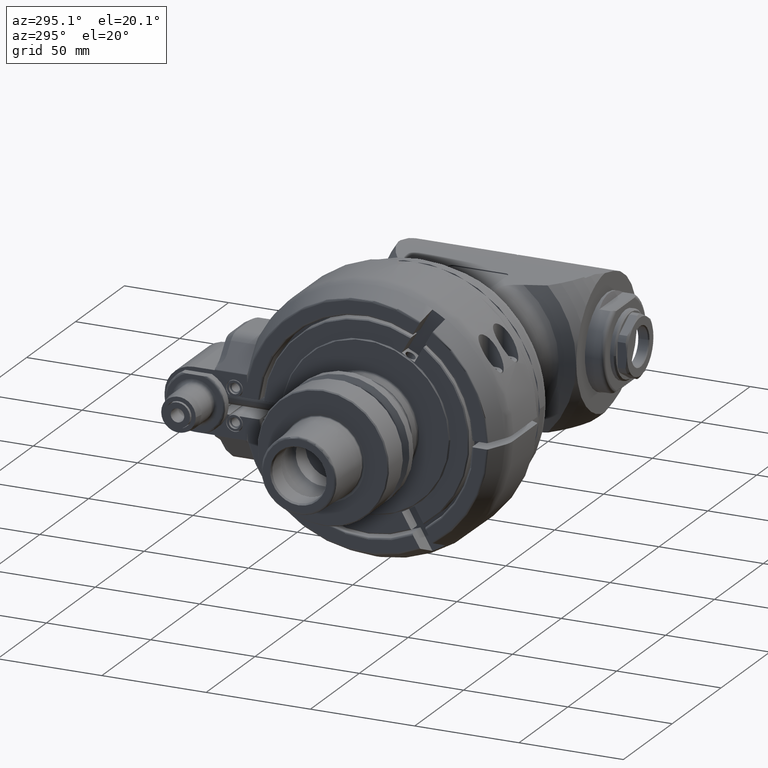
[diagram: clean part render]
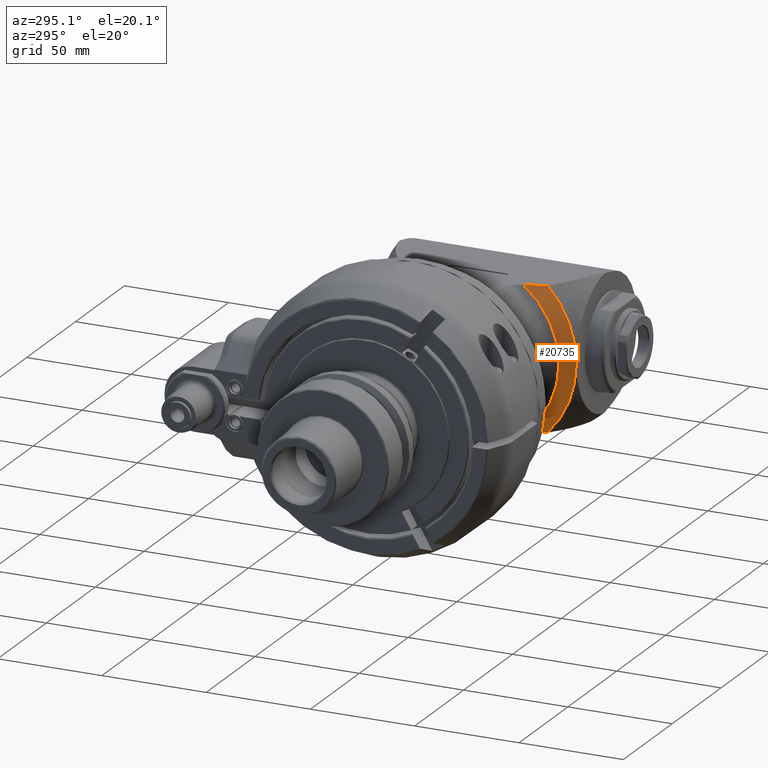
[diagram: same view with one face highlighted and labeled with its STEP entity id]
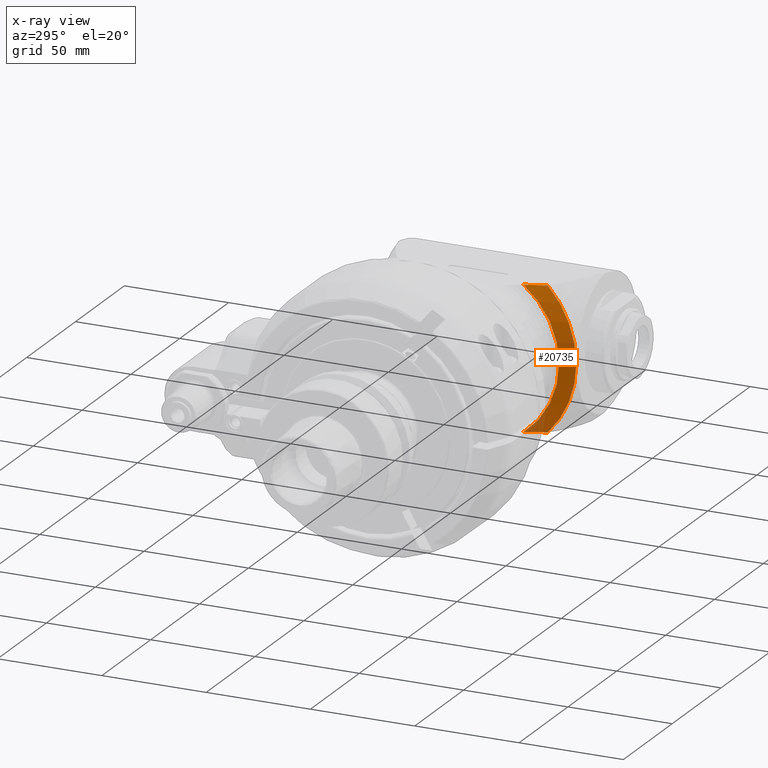
[diagram: x-ray of the same camera — body ghosted, the highlighted face saturated]
A machine part, auxiliary view. The second image highlights one B-rep face of the part: STEP entity #20735.
The next image is the same camera in x-ray: the body ghosted, the highlighted face saturated — about 7% of this face is hidden behind the body in this view.
In plain terms, the highlighted conical surface has half-angle 60 deg.
Its self-contained STEP definition (entity closure, byte-faithful):
#333=B_SPLINE_CURVE_WITH_KNOTS('',3,(#32795,#32796,#32797,#32798,#32799,
#32800,#32801,#32802,#32803,#32804,#32805,#32806,#32807,#32808,#32809,#32810,
#32811,#32812,#32813,#32814,#32815,#32816,#32817,#32818,#32819),
 .UNSPECIFIED.,.F.,.F.,(4,3,3,3,3,3,3,3,4),(0.,1.30948238302685,2.61889746180763,
3.92826086046721,5.2375941532122,6.54736678023238,7.85804900088386,9.16938552513648,
10.4811395348886),.UNSPECIFIED.);
#334=B_SPLINE_CURVE_WITH_KNOTS('',3,(#32822,#32823,#32824,#32825,#32826,
#32827,#32828,#32829,#32830,#32831,#32832,#32833,#32834,#32835,#32836,#32837,
#32838,#32839,#32840,#32841,#32842,#32843,#32844,#32845,#32846),
 .UNSPECIFIED.,.F.,.F.,(4,3,3,3,3,3,3,3,4),(0.,1.30983362429086,2.61971322563973,
3.929680558623,5.23975538129397,6.54994635411092,7.86025117107962,9.17065675627147,
10.4811395331087),.UNSPECIFIED.);
#493=CONICAL_SURFACE('',#21967,55.2420471066061,1.0471975511966);
#634=CIRCLE('',#21953,49.);
#644=CIRCLE('',#21968,42.5);
#645=CIRCLE('',#21969,49.);
#2431=FACE_OUTER_BOUND('',#3328,.T.);
#3328=EDGE_LOOP('',(#13432,#13433,#13434,#13435,#13436));
#7374=VERTEX_POINT('',#32472);
#7375=VERTEX_POINT('',#32537);
#7386=VERTEX_POINT('',#32792);
#7387=VERTEX_POINT('',#32793);
#7388=VERTEX_POINT('',#32820);
#9982=EDGE_CURVE('',#7374,#7375,#634,.T.);
#9996=EDGE_CURVE('',#7386,#7387,#644,.T.);
#9997=EDGE_CURVE('',#7375,#7387,#333,.T.);
#9998=EDGE_CURVE('',#7388,#7374,#645,.T.);
#9999=EDGE_CURVE('',#7386,#7388,#334,.T.);
#13432=ORIENTED_EDGE('',*,*,#9996,.T.);
#13433=ORIENTED_EDGE('',*,*,#9997,.F.);
#13434=ORIENTED_EDGE('',*,*,#9982,.F.);
#13435=ORIENTED_EDGE('',*,*,#9998,.F.);
#13436=ORIENTED_EDGE('',*,*,#9999,.F.);
#20735=ADVANCED_FACE('',(#2431),#493,.T.);
#21953=AXIS2_PLACEMENT_3D('',#32538,#24674,#24675);
#21967=AXIS2_PLACEMENT_3D('',#32791,#24703,#24704);
#21968=AXIS2_PLACEMENT_3D('',#32794,#24705,#24706);
#21969=AXIS2_PLACEMENT_3D('',#32821,#24707,#24708);
#24674=DIRECTION('center_axis',(1.,0.,0.));
#24675=DIRECTION('ref_axis',(0.,-1.,-5.39030285815812E-15));
#24703=DIRECTION('center_axis',(1.,0.,0.));
#24704=DIRECTION('ref_axis',(0.,-1.,-5.39030285815812E-15));
#24705=DIRECTION('center_axis',(1.,0.,0.));
#24706=DIRECTION('ref_axis',(0.,-6.12323399573677E-17,-1.));
#24707=DIRECTION('center_axis',(1.,0.,0.));
#24708=DIRECTION('ref_axis',(0.,-1.,-5.39030285815812E-15));
#32472=CARTESIAN_POINT('',(246.759249422705,-49.,-2.52164348957471E-13));
#32537=CARTESIAN_POINT('',(246.759249422701,-35.2845575287514,-34.0000000000003));
#32538=CARTESIAN_POINT('Origin',(246.759249422705,2.17540971751503E-31,
3.5527136788005E-15));
#32791=CARTESIAN_POINT('Origin',(250.363096999999,2.17540971751503E-31,
3.5527136788005E-15));
#32792=CARTESIAN_POINT('',(243.00647267297,-25.4999999999936,33.9999999999998));
#32793=CARTESIAN_POINT('',(243.006472672968,-25.4999999999863,-34.0000000000002));
#32794=CARTESIAN_POINT('Origin',(243.006472672973,-1.08770485875751E-31,
-1.77635683940025E-15));
#32795=CARTESIAN_POINT('Ctrl Pts',(246.759249423017,-35.2845575295032,-34.0000000000003));
#32796=CARTESIAN_POINT('Ctrl Pts',(246.591678559606,-34.8814967513227,-34.0000000000003));
#32797=CARTESIAN_POINT('Ctrl Pts',(246.425290901548,-34.4779579724012,-34.0000000000003));
#32798=CARTESIAN_POINT('Ctrl Pts',(246.260162708407,-34.0739166384426,-34.0000000000003));
#32799=CARTESIAN_POINT('Ctrl Pts',(246.095034523056,-33.669875323544,-34.0000000000003));
#32800=CARTESIAN_POINT('Ctrl Pts',(245.931165757831,-33.2653314096045,-34.0000000000003));
#32801=CARTESIAN_POINT('Ctrl Pts',(245.768638135518,-32.8602587076079,-34.0000000000003));
#32802=CARTESIAN_POINT('Ctrl Pts',(245.606110523883,-32.4551860322203,-34.0000000000003));
#32803=CARTESIAN_POINT('Ctrl Pts',(245.444924007542,-32.0495845174007,-34.0000000000003));
#32804=CARTESIAN_POINT('Ctrl Pts',(245.285166213843,-31.6434264375915,-34.0000000000003));
#32805=CARTESIAN_POINT('Ctrl Pts',(245.125408433985,-31.2372683929707,-34.0000000000003));
#32806=CARTESIAN_POINT('Ctrl Pts',(244.967079326543,-30.8305537234464,-34.0000000000003));
#32807=CARTESIAN_POINT('Ctrl Pts',(244.81027287699,-30.4232533029127,-34.0000000000003));
#32808=CARTESIAN_POINT('Ctrl Pts',(244.653475862844,-30.0159773905888,-34.0000000000003));
#32809=CARTESIAN_POINT('Ctrl Pts',(244.498135834572,-29.607945689916,-34.0000000000003));
#32810=CARTESIAN_POINT('Ctrl Pts',(244.344366599427,-29.1991507105032,-34.0000000000003));
#32811=CARTESIAN_POINT('Ctrl Pts',(244.190598120098,-28.7903577404221,-34.0000000000003));
#32812=CARTESIAN_POINT('Ctrl Pts',(244.038403745841,-28.3808101919764,-34.0000000000003));
#32813=CARTESIAN_POINT('Ctrl Pts',(243.887912091706,-27.9705224154827,-34.0000000000003));
#32814=CARTESIAN_POINT('Ctrl Pts',(243.73742042662,-27.5602346091346,-34.0000000000003));
#32815=CARTESIAN_POINT('Ctrl Pts',(243.588631449105,-27.1492065199198,-34.0000000000003));
#32816=CARTESIAN_POINT('Ctrl Pts',(243.441679257921,-26.737449527821,-34.0000000000003));
#32817=CARTESIAN_POINT('Ctrl Pts',(243.294727056451,-26.3256925069041,-34.0000000000003));
#32818=CARTESIAN_POINT('Ctrl Pts',(243.149611609277,-25.9132065170426,-34.0000000000002));
#32819=CARTESIAN_POINT('Ctrl Pts',(243.006472672652,-25.4999999990738,-34.0000000000002));
#32820=CARTESIAN_POINT('',(246.759249422704,-35.2845575287536,33.9999999999997));
#32821=CARTESIAN_POINT('Origin',(246.759249422705,2.17540971751503E-31,
3.5527136788005E-15));
#32822=CARTESIAN_POINT('Ctrl Pts',(243.006472672972,-25.5,33.9999999999997));
#32823=CARTESIAN_POINT('Ctrl Pts',(243.14939150187,-25.9125711216809,33.9999999999997));
#32824=CARTESIAN_POINT('Ctrl Pts',(243.294280123065,-26.3244229826853,33.9999999999998));
#32825=CARTESIAN_POINT('Ctrl Pts',(243.441033779375,-26.7356408725231,33.9999999999998));
#32826=CARTESIAN_POINT('Ctrl Pts',(243.587785862259,-27.1468543534722,33.9999999999998));
#32827=CARTESIAN_POINT('Ctrl Pts',(243.736396318235,-27.5574147428115,33.9999999999998));
#32828=CARTESIAN_POINT('Ctrl Pts',(243.886749112895,-27.9673516607755,33.9999999999998));
#32829=CARTESIAN_POINT('Ctrl Pts',(244.037101921416,-28.3772886165302,33.9999999999998));
#32830=CARTESIAN_POINT('Ctrl Pts',(244.189197122244,-28.786602189108,33.9999999999997));
#32831=CARTESIAN_POINT('Ctrl Pts',(244.342925912283,-29.1953205041279,33.9999999999997));
#32832=CARTESIAN_POINT('Ctrl Pts',(244.496654712169,-29.6040388453297,33.9999999999997));
#32833=CARTESIAN_POINT('Ctrl Pts',(244.652017154049,-30.012162005305,33.9999999999997));
#32834=CARTESIAN_POINT('Ctrl Pts',(244.808911231663,-30.41971635261,33.9999999999997));
#32835=CARTESIAN_POINT('Ctrl Pts',(244.96580531554,-30.8272707161839,33.9999999999997));
#32836=CARTESIAN_POINT('Ctrl Pts',(245.124231086071,-31.2342563324231,33.9999999999997));
#32837=CARTESIAN_POINT('Ctrl Pts',(245.284092886914,-31.6406976162473,33.9999999999997));
#32838=CARTESIAN_POINT('Ctrl Pts',(245.443954690898,-32.0471389080544,33.9999999999997));
#32839=CARTESIAN_POINT('Ctrl Pts',(245.605252573538,-32.4530359227508,33.9999999999997));
#32840=CARTESIAN_POINT('Ctrl Pts',(245.767896782733,-32.8584109838979,33.9999999999997));
#32841=CARTESIAN_POINT('Ctrl Pts',(245.930540992425,-33.2637860462831,33.9999999999997));
#32842=CARTESIAN_POINT('Ctrl Pts',(246.094531573972,-33.6686392013723,33.9999999999997));
#32843=CARTESIAN_POINT('Ctrl Pts',(246.259784245344,-34.0729905957438,33.9999999999997));
#32844=CARTESIAN_POINT('Ctrl Pts',(246.425036915057,-34.4773419860566,33.9999999999997));
#32845=CARTESIAN_POINT('Ctrl Pts',(246.591551716572,-34.8811916538166,33.9999999999997));
#32846=CARTESIAN_POINT('Ctrl Pts',(246.75924942271,-35.2845575287656,33.9999999999997));